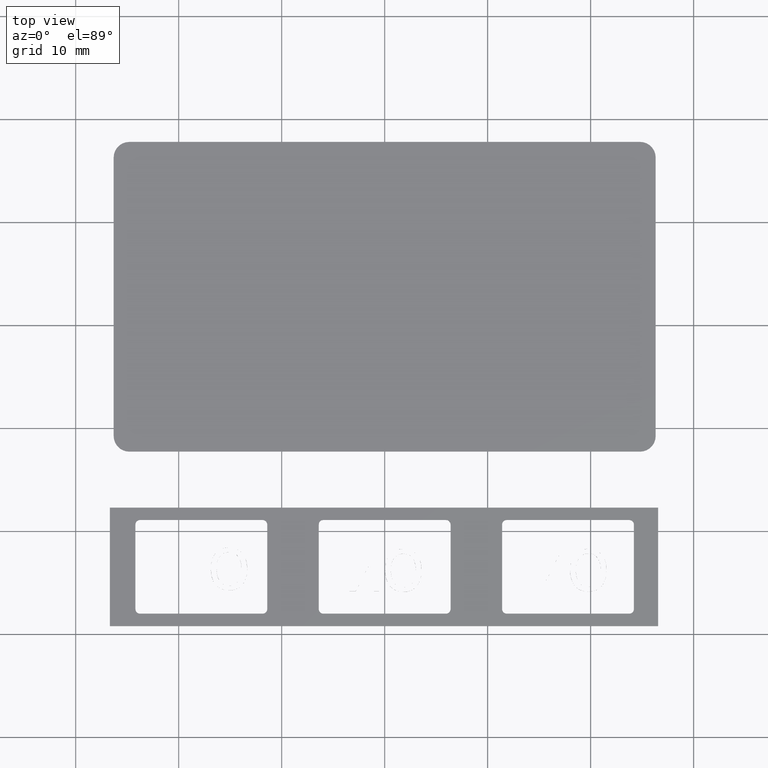
[diagram: clean part render]
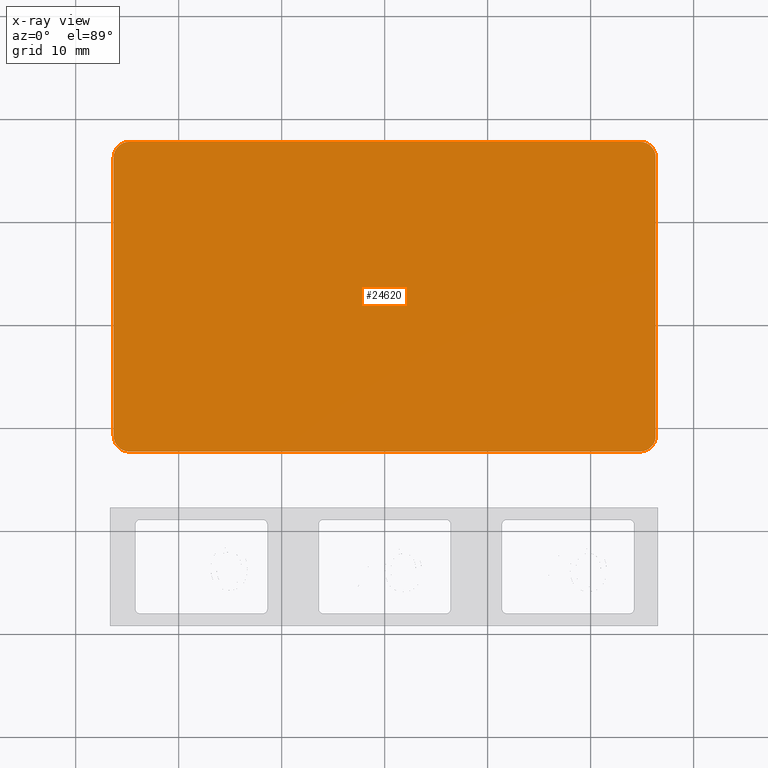
[diagram: x-ray — body ghosted, one internal face saturated and labeled with its STEP entity id]
A machine part, top view, then the same camera in x-ray: the body is ghosted and one INTERNAL B-rep face — a face not visible from any outside direction — is saturated and labeled: STEP entity #24620.
In plain terms, the highlighted planar face has unit normal (0, -0, 1).
Its self-contained STEP definition (entity closure, byte-faithful):
#330=PLANE('',#27552);
#1552=LINE('',#40844,#3199);
#1556=LINE('',#40853,#3203);
#1559=LINE('',#40861,#3206);
#1562=LINE('',#40869,#3209);
#3199=VECTOR('',#33671,49.6);
#3203=VECTOR('',#33681,27.05);
#3206=VECTOR('',#33690,49.6);
#3209=VECTOR('',#33699,27.05);
#5898=FACE_OUTER_BOUND('',#7226,.T.);
#7226=EDGE_LOOP('',(#21562,#21563,#21564,#21565,#21566,#21567,#21568,#21569));
#9051=CIRCLE('',#27305,1.51066017177982);
#9052=CIRCLE('',#27308,1.51066017177982);
#9053=CIRCLE('',#27311,1.51066017177982);
#9054=CIRCLE('',#27314,1.51066017177982);
#10865=VERTEX_POINT('',#40842);
#10866=VERTEX_POINT('',#40843);
#10867=VERTEX_POINT('',#40848);
#10868=VERTEX_POINT('',#40852);
#10869=VERTEX_POINT('',#40856);
#10870=VERTEX_POINT('',#40860);
#10871=VERTEX_POINT('',#40864);
#10872=VERTEX_POINT('',#40868);
#14104=EDGE_CURVE('',#10865,#10866,#1552,.T.);
#14107=EDGE_CURVE('',#10866,#10867,#9051,.T.);
#14109=EDGE_CURVE('',#10867,#10868,#1556,.T.);
#14111=EDGE_CURVE('',#10868,#10869,#9052,.T.);
#14113=EDGE_CURVE('',#10869,#10870,#1559,.T.);
#14115=EDGE_CURVE('',#10870,#10871,#9053,.T.);
#14117=EDGE_CURVE('',#10871,#10872,#1562,.T.);
#14119=EDGE_CURVE('',#10872,#10865,#9054,.T.);
#21562=ORIENTED_EDGE('',*,*,#14119,.T.);
#21563=ORIENTED_EDGE('',*,*,#14104,.T.);
#21564=ORIENTED_EDGE('',*,*,#14107,.T.);
#21565=ORIENTED_EDGE('',*,*,#14109,.T.);
#21566=ORIENTED_EDGE('',*,*,#14111,.T.);
#21567=ORIENTED_EDGE('',*,*,#14113,.T.);
#21568=ORIENTED_EDGE('',*,*,#14115,.T.);
#21569=ORIENTED_EDGE('',*,*,#14117,.T.);
#24620=ADVANCED_FACE('',(#5898),#330,.T.);
#27305=AXIS2_PLACEMENT_3D('',#40849,#33676,#33677);
#27308=AXIS2_PLACEMENT_3D('',#40857,#33685,#33686);
#27311=AXIS2_PLACEMENT_3D('',#40865,#33694,#33695);
#27314=AXIS2_PLACEMENT_3D('',#40872,#33703,#33704);
#27552=AXIS2_PLACEMENT_3D('',#42781,#34686,#34687);
#33671=DIRECTION('',(1.,6.33289032309745E-16,-1.19117678683756E-15));
#33676=DIRECTION('center_axis',(1.19117678683756E-15,-1.03039885219751E-17,
1.));
#33677=DIRECTION('ref_axis',(1.,2.75152572753243E-16,3.5619655373375E-16));
#33681=DIRECTION('',(3.00831663131376E-15,1.,1.03039885219715E-17));
#33685=DIRECTION('center_axis',(1.19117678683756E-15,-1.03039885219751E-17,
1.));
#33686=DIRECTION('ref_axis',(-6.15455838679353E-15,1.,-3.41278292167814E-17));
#33690=DIRECTION('',(-1.,-6.33289032309745E-16,1.19117678683756E-15));
#33694=DIRECTION('center_axis',(1.19117678683756E-15,-1.03039885219751E-17,
1.));
#33695=DIRECTION('ref_axis',(-1.,-2.75152572753243E-16,-3.5619655373375E-16));
#33699=DIRECTION('',(6.03499493159943E-16,-1.,-1.03039885219758E-17));
#33703=DIRECTION('center_axis',(1.19117678683756E-15,-1.03039885219751E-17,
1.));
#33704=DIRECTION('ref_axis',(2.75152572753243E-16,-1.,3.41278292167793E-17));
#34686=DIRECTION('center_axis',(1.19117678683756E-15,-1.03039885219749E-17,
1.));
#34687=DIRECTION('ref_axis',(-1.,-1.4210854715202E-15,1.19348975147204E-15));
#40842=CARTESIAN_POINT('',(-24.7999999999995,-82.2606601717801,0.375000000000032));
#40843=CARTESIAN_POINT('',(24.8000000000005,-82.2606601717801,0.37499999999997));
#40844=CARTESIAN_POINT('',(-12.3999999999995,-82.2606601717801,0.375000000000023));
#40848=CARTESIAN_POINT('',(26.3106601717803,-80.7500000000002,0.37499999999997));
#40849=CARTESIAN_POINT('Origin',(24.8000000000005,-80.7500000000002,0.375000000000014));
#40852=CARTESIAN_POINT('',(26.3106601717804,-53.7000000000002,0.37499999999997));
#40853=CARTESIAN_POINT('',(26.3106601717804,-59.3750000000001,0.37499999999997));
#40856=CARTESIAN_POINT('',(24.8000000000005,-52.1893398282204,0.37499999999997));
#40857=CARTESIAN_POINT('Origin',(24.8000000000005,-53.7000000000002,0.375000000000014));
#40860=CARTESIAN_POINT('',(-24.7999999999995,-52.1893398282204,0.375000000000032));
#40861=CARTESIAN_POINT('',(12.4000000000005,-52.1893398282204,0.374999999999996));
#40864=CARTESIAN_POINT('',(-26.3106601717794,-53.7000000000002,0.375000000000032));
#40865=CARTESIAN_POINT('Origin',(-24.7999999999995,-53.7000000000002,0.374999999999996));
#40868=CARTESIAN_POINT('',(-26.3106601717794,-80.7500000000002,0.375000000000032));
#40869=CARTESIAN_POINT('',(-26.3106601717794,-45.8500000000001,0.375000000000041));
#40872=CARTESIAN_POINT('Origin',(-24.7999999999995,-80.7500000000002,0.374999999999996));
#42781=CARTESIAN_POINT('Origin',(4.95545272240913E-13,-67.2250000000002,
0.375000000000005));